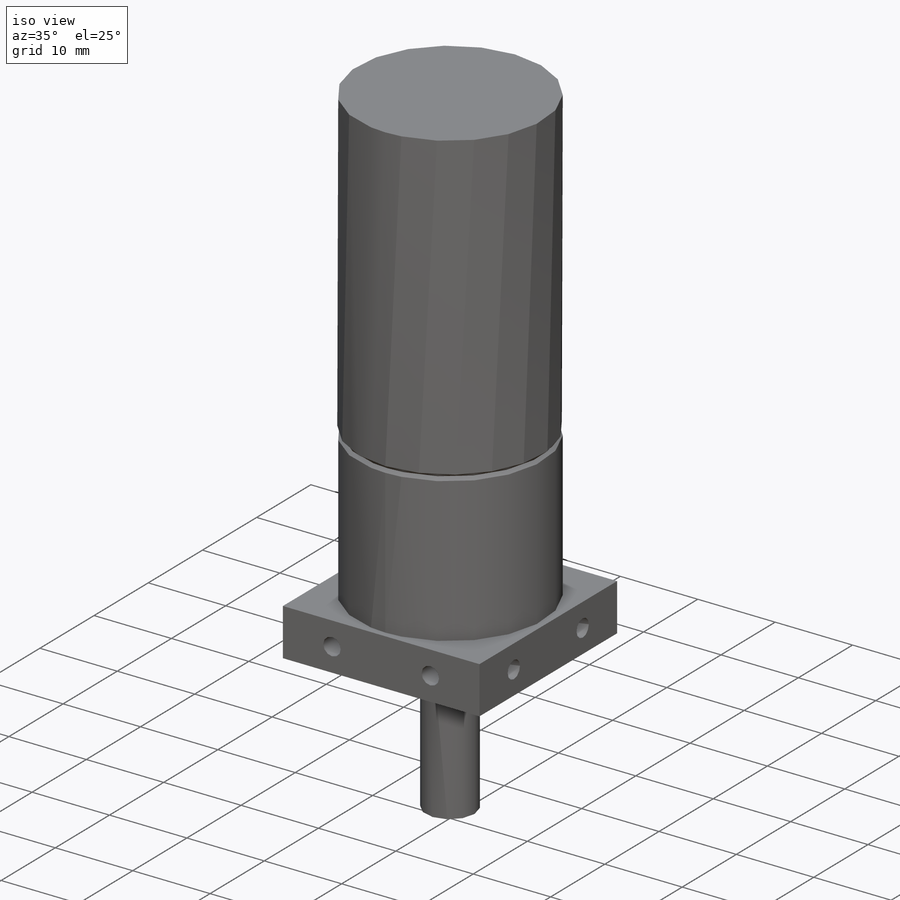
[diagram: iso view]
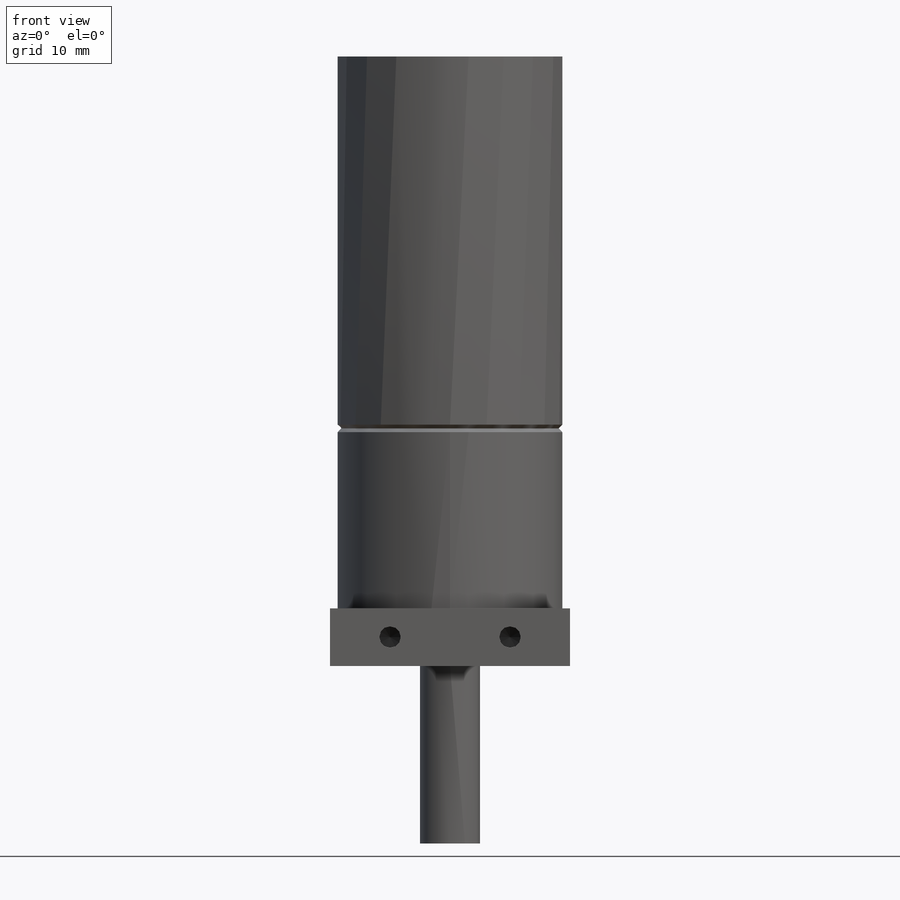
[diagram: front view]
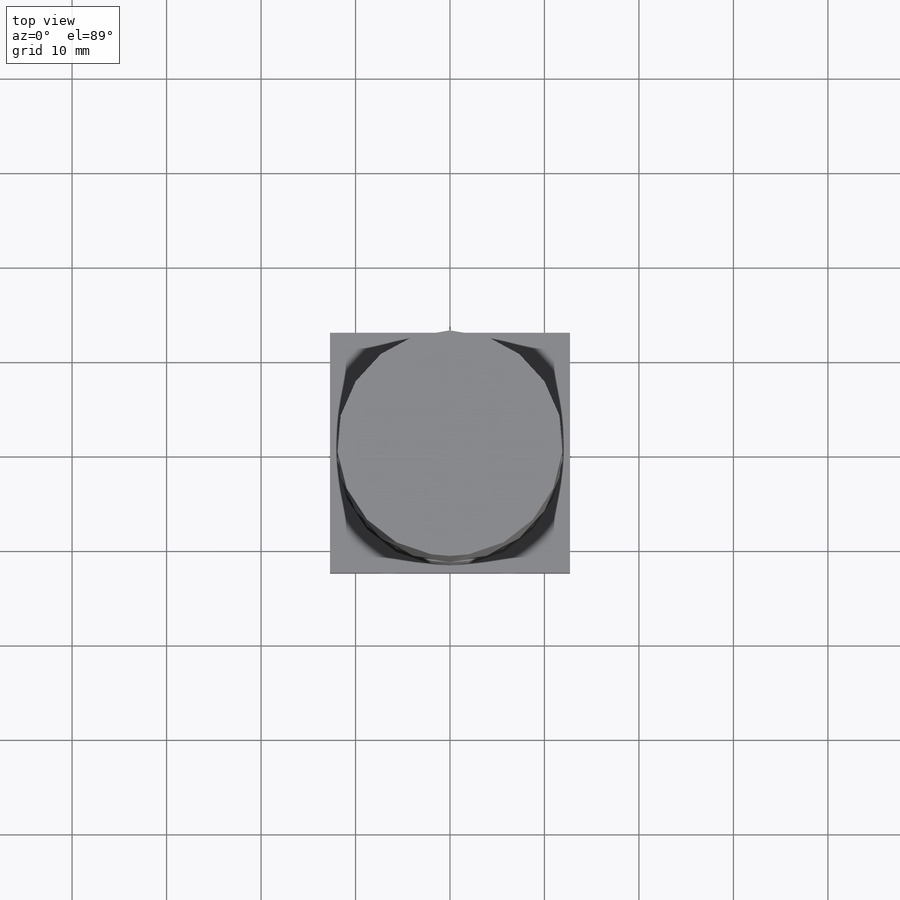
[diagram: top view]
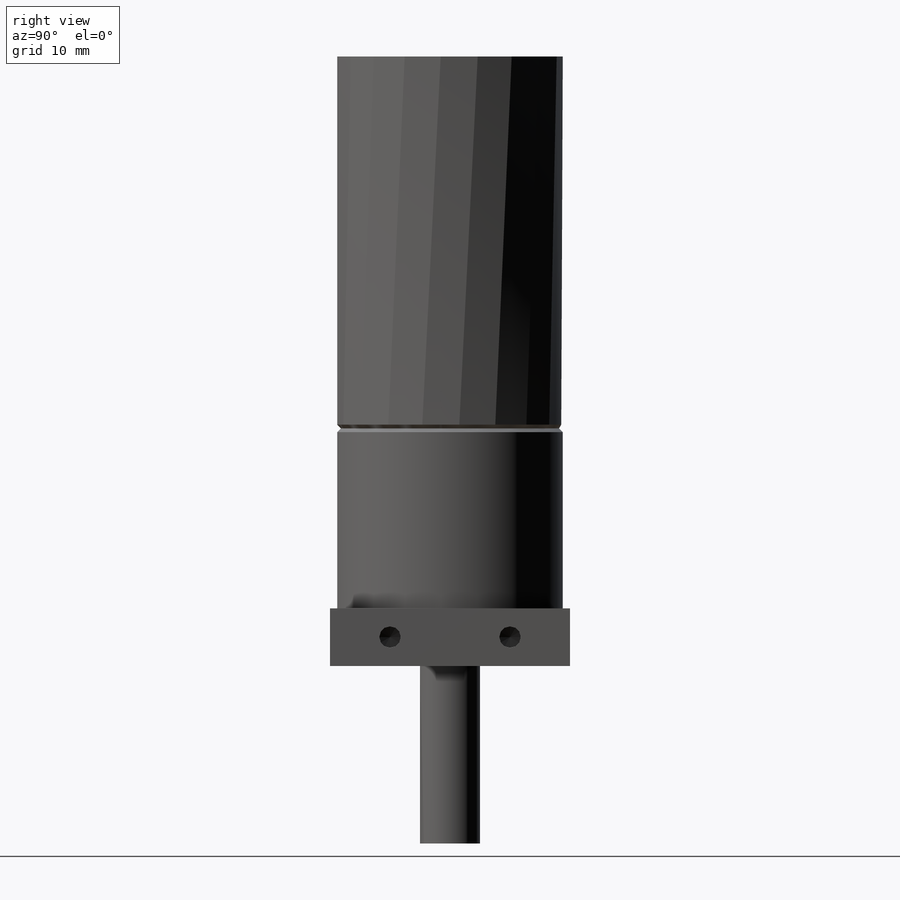
[diagram: right view]
SOLIDWORKS PART (.sldprt)
format: sldprt  version: not decoded by parser v0  size: 503,296 bytes
history: native  units: mm
features: sketch x10, thread x6, extrude x3, hole x2, material x1, pattern_circular x1, cut_revolve x1 (+17 scaffold rows collapsed)
feature tree (41):
  scaffold x17  (default folders/planes/origin — collapsed)
  material  "Material <not specified>"
  sketch  "Sketch1"  dims[D1=25.4mm]
  extrude  "Extrude1"  Depth=6.096mm
  sketch  "Sketch2"  dims[D1=23.876mm]
  extrude  "Extrude2"  Depth=58.42mm
  sketch  "Sketch3"  dims[D1=6.35mm]
  extrude  "Extrude3"  Depth=18.796mm
  sketch  "Sketch4"  dims[D1=6.35mm]
  sketch  "Sketch9"  dims[c1.D1=~7.742039mm c1.D2=25.4mm c1.D3=6.35mm c2.D1=4.826mm c2.D2=4.826mm c2.D3=4.826mm c2.D4=4.826mm c3.D1=6.35mm c3.D2=6.35mm c3.D3=6.35mm c3.D4=6.35mm]
  hole  "#4-40 Tapped Hole3"  Diameter=2.2606mm Depth=3.048mm
  sketch  "3DSketch3"
  sketch  "Sketch11"  dims[hole-wizard template sketch: 47 standard entries collapsed; hole parameters kept: c15.Tap Drill Depth=3.048mm c15.D3=~14.816244mm c15.Drill Angle=118.0deg]
  thread  "Hole Thread13"  Diameter=5.588mm  [1 undecoded]
  thread  "Hole Thread14"  Diameter=5.588mm  [1 undecoded]
  thread  "Hole Thread15"  Diameter=5.588mm  [1 undecoded]
  thread  "Hole Thread16"  Diameter=5.588mm  [1 undecoded]
  hole  "#4-40 Tapped Hole4"  Diameter=2.2606mm Depth=4.191mm
  sketch  "3DSketch4"
  sketch  "Sketch12"  dims[hole-wizard template sketch: 47 standard entries collapsed; hole parameters kept: c15.Tap Drill Depth=4.191mm c15.D3=~14.816244mm c15.Drill Angle=118.0deg]
  thread  "Hole Thread17"  Diameter=5.588mm  [1 undecoded]
  thread  "Hole Thread18"  Diameter=5.588mm  [1 undecoded]
  pattern_circular  "CirPattern1"  Count=4 Angle=360deg
  sketch  "Sketch13"  dims[D1=19.05mm D2=~0.79375mm D3=1.5875mm]
  cut_revolve  "Cut-Revolve1"  Angle=360deg
decode coverage: 21 of 23 modeling features carry decoded parameters
note: ~ marks probable driven/reference dimensions
note: 6 parameter values undecoded
note: suppression state not decoded; provenance and decode notes live in map.json
